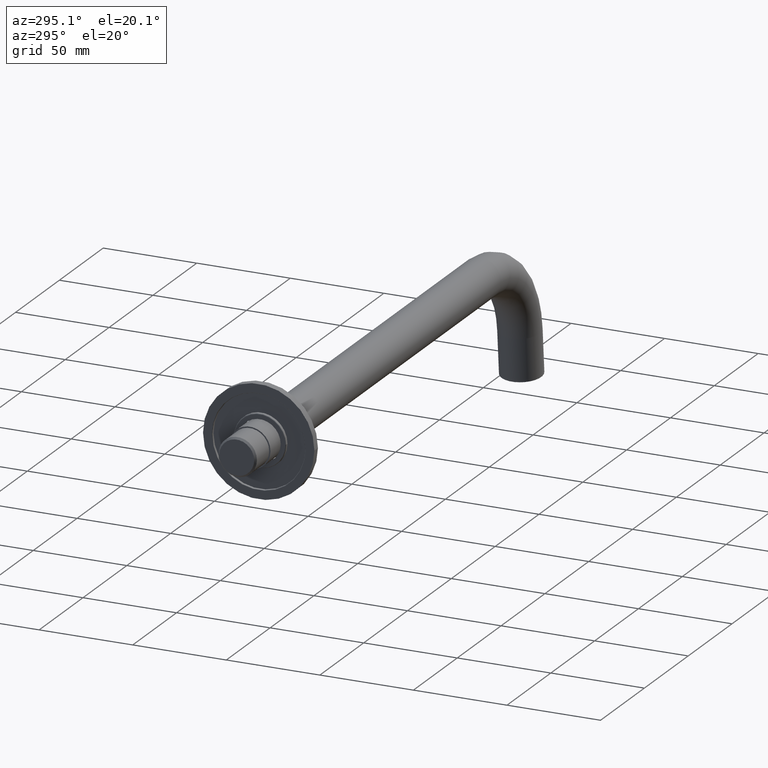
[diagram: clean part render]
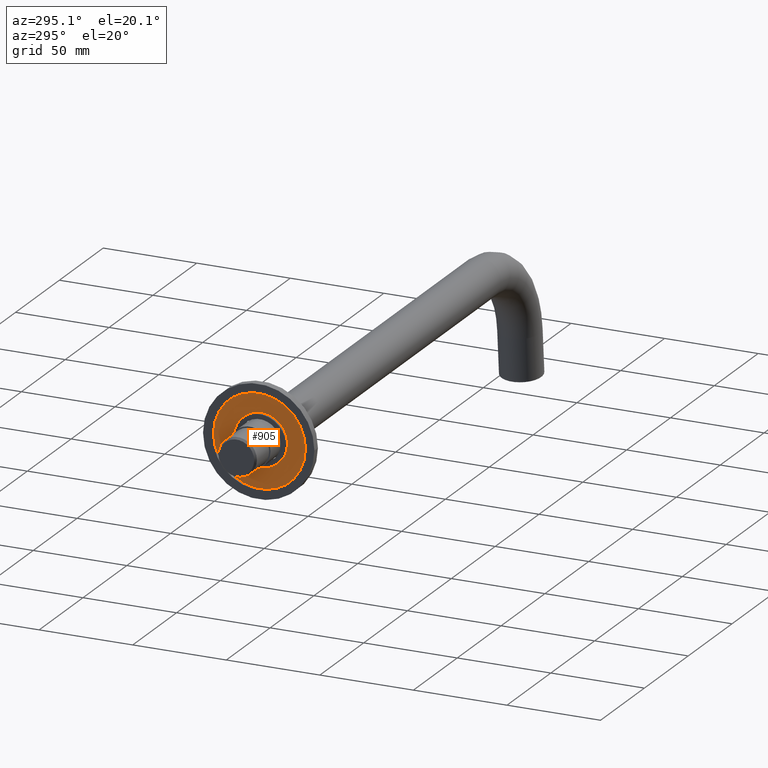
[diagram: same view with one face highlighted and labeled with its STEP entity id]
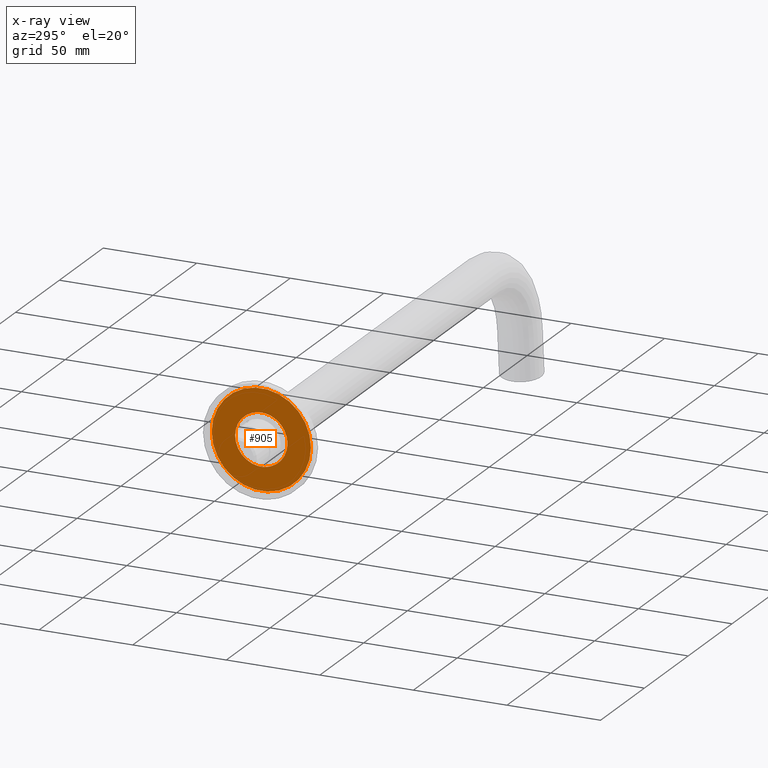
[diagram: x-ray of the same camera — body ghosted, the highlighted face saturated]
A machine part, auxiliary view. The second image highlights one B-rep face of the part: STEP entity #905.
The next image is the same camera in x-ray: the body ghosted, the highlighted face saturated — about 0% of this face is hidden behind the body in this view.
In plain terms, the highlighted planar face has unit normal (-1, 0, -0).
Its self-contained STEP definition (entity closure, byte-faithful):
#121=PLANE('',#1002);
#195=VERTEX_POINT('',#1161);
#196=VERTEX_POINT('',#1164);
#282=CIRCLE('',#1001,14.0000000000018);
#283=CIRCLE('',#1003,26.5);
#345=EDGE_CURVE('',#195,#195,#282,.T.);
#346=EDGE_CURVE('',#196,#196,#283,.T.);
#475=ORIENTED_EDGE('',*,*,#346,.F.);
#476=ORIENTED_EDGE('',*,*,#345,.T.);
#685=EDGE_LOOP('',(#475));
#686=EDGE_LOOP('',(#476));
#807=FACE_BOUND('',#685,.T.);
#808=FACE_BOUND('',#686,.T.);
#905=ADVANCED_FACE('',(#807,#808),#121,.T.);
#1001=AXIS2_PLACEMENT_3D('',#1160,#1435,#1436);
#1002=AXIS2_PLACEMENT_3D('',#1162,#1437,$);
#1003=AXIS2_PLACEMENT_3D('',#1163,#1438,#1439);
#1160=CARTESIAN_POINT('',(-85.7261744394856,-15.2,45.544166336812));
#1161=CARTESIAN_POINT('',(-85.7261744394856,-29.2000000000017,45.544166336812));
#1162=CARTESIAN_POINT('',(-85.7261744394856,-35.4500000000007,45.544166336812));
#1163=CARTESIAN_POINT('',(-85.7261744394856,-15.2,45.544166336812));
#1164=CARTESIAN_POINT('',(-85.7261744394856,-41.7,45.544166336812));
#1435=DIRECTION('',(1.,-6.12303176911189E-017,6.12303176911189E-017));
#1436=DIRECTION('',(-8.57224447675776E-016,-14.0000000000018,0.));
#1437=DIRECTION('',(-1.,6.12303176911189E-017,-6.12303176911189E-017));
#1438=DIRECTION('',(1.,-6.12303176911189E-017,6.12303176911189E-017));
#1439=DIRECTION('',(-1.62260341881465E-015,-26.5,0.));